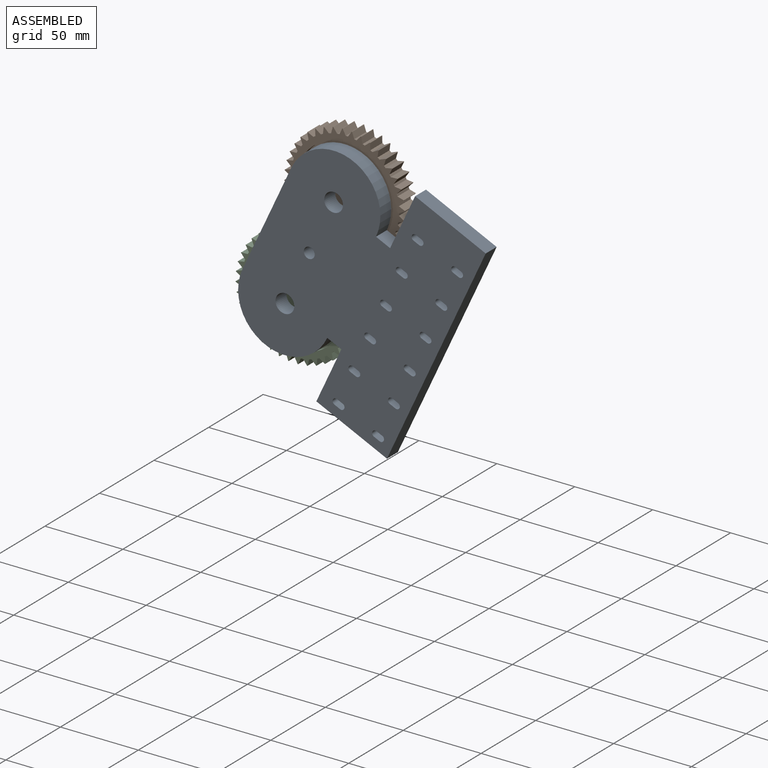
[diagram: assembled view]
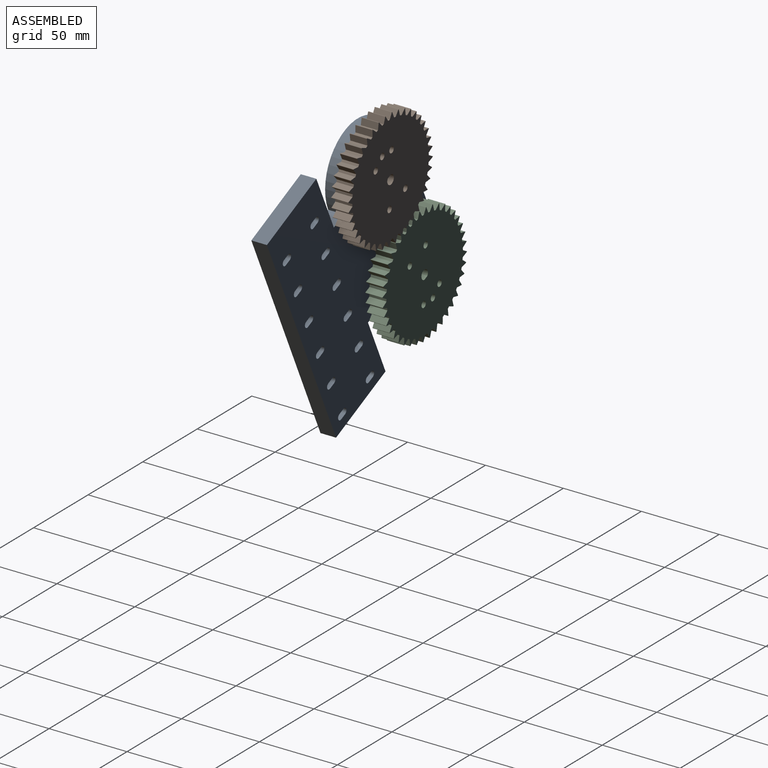
[diagram: assembled view, second angle]
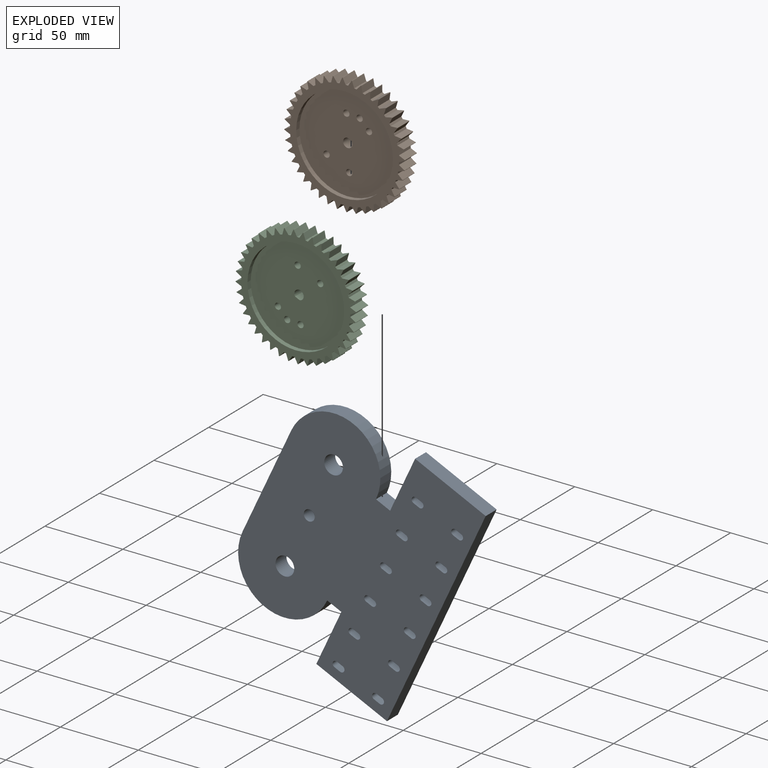
[diagram: exploded view]
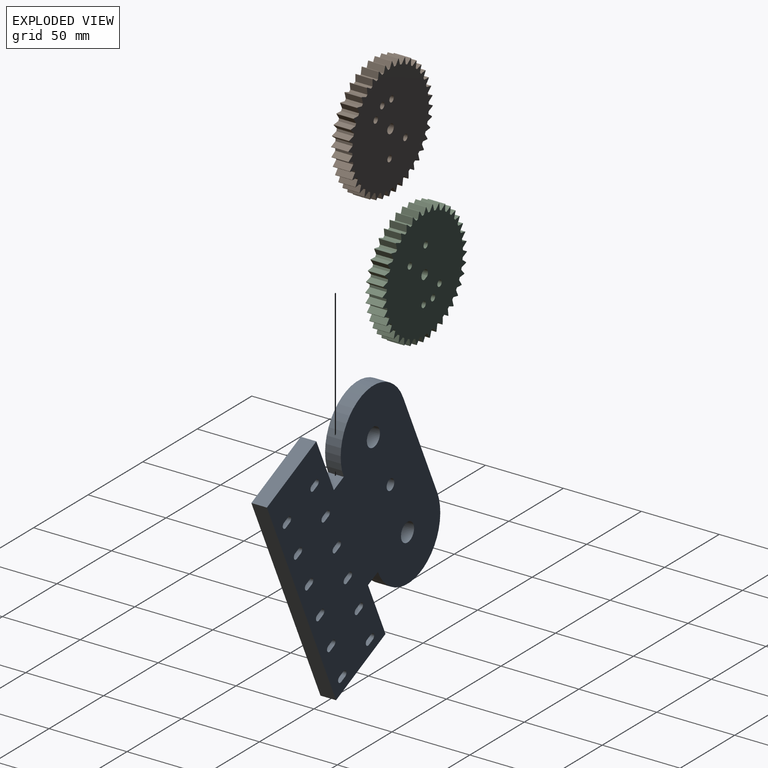
[diagram: exploded view, second angle]
ASSEMBLY  parts=3 mates=2
PART A: 63 faces, bbox 120x10x150 mm
  f0: plane 150x120mm, normal (0,1,0), area 14900mm2, adj f1,f3,f4,f5,f6,f7,f8,f9
  f1: plane 74x10mm, normal (1,0,0), area 740mm2, adj f0,f2,f6,f62
  f2: plane 150x120mm, normal (0,-1,0), area 14900mm2, adj f1,f3,f4,f5,f6,f7,f8,f9
  f3: cylinder r=6mm len=12mm, axis (0,1,0), area 377mm2, adj f0,f2
  f4: cylinder r=3.5mm len=10mm, axis (0,1,0), area 219.9mm2, adj f0,f2
  f5: cylinder r=6mm len=12mm, axis (0,1,0), area 377mm2, adj f0,f2
  f6: cylinder r=30mm len=60mm, axis (0,-1,0), area 942.5mm2, adj f0,f1,f2,f12
  f7: plane 38x10mm, normal (1,0,0), area 380mm2, adj f0,f2,f8,f61
  f8: plane 50x10mm, normal (0,0,1), area 500mm2, adj f0,f2,f7,f9
  f9: plane 150x10mm, normal (-1,0,0), area 1500mm2, adj f0,f2,f8,f10
  f10: plane 50x10mm, normal (0,0,-1), area 500mm2, adj f0,f2,f9,f11
  f11: plane 38x10mm, normal (1,0,0), area 380mm2, adj f0,f2,f10,f12
  f12: plane 10x10mm, normal (0,0,-1), area 100mm2, adj f0,f2,f6,f11
  f13: plane 10x4mm, normal (0,0,-1), area 40mm2, adj f0,f2,f14,f49
  f14: cylinder r=2mm len=10mm, axis (0,1,0), area 62.8mm2, adj f0,f2,f13,f15
  f15: plane 10x4mm, normal (0,0,1), area 40mm2, adj f0,f2,f14,f49
  f16: plane 10x4mm, normal (0,0,-1), area 40mm2, adj f0,f2,f17,f50
  f17: cylinder r=2mm len=10mm, axis (0,1,0), area 62.8mm2, adj f0,f2,f16,f18
  f18: plane 10x4mm, normal (0,0,1), area 40mm2, adj f0,f2,f17,f50
  f19: plane 10x4mm, normal (0,0,-1), area 40mm2, adj f0,f2,f20,f51
  f20: cylinder r=2mm len=10mm, axis (0,1,0), area 62.8mm2, adj f0,f2,f19,f21
  f21: plane 10x4mm, normal (0,0,1), area 40mm2, adj f0,f2,f20,f51
  f22: plane 10x4mm, normal (0,0,-1), area 40mm2, adj f0,f2,f23,f52
  f23: cylinder r=2mm len=10mm, axis (0,1,0), area 62.8mm2, adj f0,f2,f22,f24
  f24: plane 10x4mm, normal (0,0,1), area 40mm2, adj f0,f2,f23,f52
  f25: plane 10x4mm, normal (0,0,-1), area 40mm2, adj f0,f2,f26,f53
  f26: cylinder r=2mm len=10mm, axis (0,1,0), area 62.8mm2, adj f0,f2,f25,f27
  f27: plane 10x4mm, normal (0,0,1), area 40mm2, adj f0,f2,f26,f53
  f28: plane 10x4mm, normal (0,0,-1), area 40mm2, adj f0,f2,f29,f54
  f29: cylinder r=2mm len=10mm, axis (0,1,0), area 62.8mm2, adj f0,f2,f28,f30
  f30: plane 10x4mm, normal (0,0,1), area 40mm2, adj f0,f2,f29,f54
  f31: plane 10x4mm, normal (0,0,-1), area 40mm2, adj f0,f2,f32,f55
  f32: cylinder r=2mm len=10mm, axis (0,1,0), area 62.8mm2, adj f0,f2,f31,f33
  f33: plane 10x4mm, normal (0,0,1), area 40mm2, adj f0,f2,f32,f55
  f34: plane 10x4mm, normal (0,0,-1), area 40mm2, adj f0,f2,f35,f56
  f35: cylinder r=2mm len=10mm, axis (0,1,0), area 62.8mm2, adj f0,f2,f34,f36
  f36: plane 10x4mm, normal (0,0,1), area 40mm2, adj f0,f2,f35,f56
  f37: plane 10x4mm, normal (0,0,-1), area 40mm2, adj f0,f2,f38,f57
  f38: cylinder r=2mm len=10mm, axis (0,1,0), area 62.8mm2, adj f0,f2,f37,f39
  f39: plane 10x4mm, normal (0,0,1), area 40mm2, adj f0,f2,f38,f57
  f40: plane 10x4mm, normal (0,0,-1), area 40mm2, adj f0,f2,f41,f58
  f41: cylinder r=2mm len=10mm, axis (0,1,0), area 62.8mm2, adj f0,f2,f40,f42
  f42: plane 10x4mm, normal (0,0,1), area 40mm2, adj f0,f2,f41,f58
  f43: plane 10x4mm, normal (0,0,-1), area 40mm2, adj f0,f2,f44,f59
  f44: cylinder r=2mm len=10mm, axis (0,1,0), area 62.8mm2, adj f0,f2,f43,f45
  f45: plane 10x4mm, normal (0,0,1), area 40mm2, adj f0,f2,f44,f59
  f46: plane 10x4mm, normal (0,0,-1), area 40mm2, adj f0,f2,f47,f60
  f47: cylinder r=2mm len=10mm, axis (0,1,0), area 62.8mm2, adj f0,f2,f46,f48
  f48: plane 10x4mm, normal (0,0,1), area 40mm2, adj f0,f2,f47,f60
  f49: cylinder r=2mm len=10mm, axis (0,1,0), area 62.8mm2, adj f0,f2,f13,f15
  f50: cylinder r=2mm len=10mm, axis (0,1,0), area 62.8mm2, adj f0,f2,f16,f18
  f51: cylinder r=2mm len=10mm, axis (0,1,0), area 62.8mm2, adj f0,f2,f19,f21
  f52: cylinder r=2mm len=10mm, axis (0,1,0), area 62.8mm2, adj f0,f2,f22,f24
  f53: cylinder r=2mm len=10mm, axis (0,1,0), area 62.8mm2, adj f0,f2,f25,f27
  f54: cylinder r=2mm len=10mm, axis (0,1,0), area 62.8mm2, adj f0,f2,f28,f30
  f55: cylinder r=2mm len=10mm, axis (0,1,0), area 62.8mm2, adj f0,f2,f31,f33
  f56: cylinder r=2mm len=10mm, axis (0,1,0), area 62.8mm2, adj f0,f2,f34,f36
  f57: cylinder r=2mm len=10mm, axis (0,1,0), area 62.8mm2, adj f0,f2,f37,f39
  f58: cylinder r=2mm len=10mm, axis (0,1,0), area 62.8mm2, adj f0,f2,f40,f42
  f59: cylinder r=2mm len=10mm, axis (0,1,0), area 62.8mm2, adj f0,f2,f43,f45
  f60: cylinder r=2mm len=10mm, axis (0,1,0), area 62.8mm2, adj f0,f2,f46,f48
  f61: plane 10x10mm, normal (0,0,1), area 100mm2, adj f0,f2,f7,f62
  f62: cylinder r=30mm len=60mm, axis (0,-1,0), area 942.5mm2, adj f0,f1,f2,f61
PART B: 171 faces, bbox 11x77.5x77.5 mm
  f0: cylinder r=35mm len=11mm, axis (-1,0,0), area 16.5mm2, adj f41,f42,f167,f168
  f1: cylinder r=35mm len=11mm, axis (-1,0,0), area 16.5mm2, adj f41,f42,f164,f165
  f2: cylinder r=35mm len=11mm, axis (-1,0,0), area 16.5mm2, adj f41,f42,f161,f162
  f3: cylinder r=35mm len=11mm, axis (-1,0,0), area 16.5mm2, adj f41,f42,f158,f159
  f4: cylinder r=35mm len=11mm, axis (-1,0,0), area 16.5mm2, adj f41,f42,f155,f156
  f5: cylinder r=35mm len=11mm, axis (-1,0,0), area 16.5mm2, adj f41,f42,f152,f153
  f6: cylinder r=35mm len=11mm, axis (-1,0,0), area 16.5mm2, adj f41,f42,f149,f150
  f7: cylinder r=35mm len=11mm, axis (-1,0,0), area 16.5mm2, adj f41,f42,f146,f147
  f8: cylinder r=35mm len=11mm, axis (-1,0,0), area 16.5mm2, adj f41,f42,f143,f144
  f9: cylinder r=35mm len=11mm, axis (-1,0,0), area 16.5mm2, adj f41,f42,f140,f141
  f10: cylinder r=35mm len=11mm, axis (-1,0,0), area 16.5mm2, adj f41,f42,f137,f138
  f11: cylinder r=35mm len=11mm, axis (-1,0,0), area 16.5mm2, adj f41,f42,f134,f135
  f12: cylinder r=35mm len=11mm, axis (-1,0,0), area 16.5mm2, adj f41,f42,f131,f132
  f13: cylinder r=35mm len=11mm, axis (-1,0,0), area 16.5mm2, adj f41,f42,f128,f129
  f14: cylinder r=35mm len=11mm, axis (-1,0,0), area 16.5mm2, adj f41,f42,f125,f126
  f15: cylinder r=35mm len=11mm, axis (-1,0,0), area 16.5mm2, adj f41,f42,f122,f123
  f16: cylinder r=35mm len=11mm, axis (-1,0,0), area 16.5mm2, adj f41,f42,f119,f120
  f17: cylinder r=35mm len=11mm, axis (-1,0,0), area 16.5mm2, adj f41,f42,f116,f117
  f18: cylinder r=35mm len=11mm, axis (-1,0,0), area 16.5mm2, adj f41,f42,f113,f114
  f19: cylinder r=35mm len=11mm, axis (-1,0,0), area 16.5mm2, adj f41,f42,f110,f111
  f20: cylinder r=35mm len=11mm, axis (-1,0,0), area 16.5mm2, adj f41,f42,f107,f108
  f21: cylinder r=35mm len=11mm, axis (-1,0,0), area 16.5mm2, adj f41,f42,f104,f105
  f22: cylinder r=35mm len=11mm, axis (-1,0,0), area 16.5mm2, adj f41,f42,f101,f102
  f23: cylinder r=35mm len=11mm, axis (-1,0,0), area 16.5mm2, adj f41,f42,f98,f99
  f24: cylinder r=35mm len=11mm, axis (-1,0,0), area 16.5mm2, adj f41,f42,f95,f96
  f25: cylinder r=35mm len=11mm, axis (-1,0,0), area 16.5mm2, adj f41,f42,f92,f93
  f26: cylinder r=35mm len=11mm, axis (-1,0,0), area 16.5mm2, adj f41,f42,f89,f90
  f27: cylinder r=35mm len=11mm, axis (-1,0,0), area 16.5mm2, adj f41,f42,f86,f87
  f28: cylinder r=35mm len=11mm, axis (-1,0,0), area 16.5mm2, adj f41,f42,f83,f84
  f29: cylinder r=35mm len=11mm, axis (-1,0,0), area 16.5mm2, adj f41,f42,f80,f81
  f30: cylinder r=35mm len=11mm, axis (-1,0,0), area 16.5mm2, adj f41,f42,f77,f78
  f31: cylinder r=35mm len=11mm, axis (-1,0,0), area 16.5mm2, adj f41,f42,f74,f75
  f32: cylinder r=35mm len=11mm, axis (-1,0,0), area 16.5mm2, adj f41,f42,f71,f72
  f33: cylinder r=35mm len=11mm, axis (-1,0,0), area 16.5mm2, adj f41,f42,f68,f69
  f34: cylinder r=35mm len=11mm, axis (-1,0,0), area 16.5mm2, adj f41,f42,f65,f66
  f35: cylinder r=35mm len=11mm, axis (-1,0,0), area 16.5mm2, adj f41,f42,f62,f63
  f36: cylinder r=35mm len=11mm, axis (-1,0,0), area 16.5mm2, adj f41,f42,f59,f60
  f37: cylinder r=35mm len=11mm, axis (-1,0,0), area 16.5mm2, adj f41,f42,f56,f57
  f38: cylinder r=35mm len=11mm, axis (-1,0,0), area 16.5mm2, adj f41,f42,f53,f54
  f39: cylinder r=35mm len=11mm, axis (-1,0,0), area 16.5mm2, adj f41,f42,f51,f170
  f40: cylinder r=31mm len=62mm, axis (-1,0,0), area 584.3mm2, adj f41,f50
  f41: plane 77.5x77.5mm, normal (1,0,0), area 1146.4mm2, adj f0,f1,f2,f3,f4,f5,f6,f7
  f42: plane 77.5x77.5mm, normal (-1,0,0), area 4075.4mm2, adj f0,f1,f2,f3,f4,f5,f6,f7
  f43: cylinder r=3mm len=8mm, axis (-1,0,0), area 123.6mm2, adj f42,f49,f50
  f44: cylinder r=2mm len=8mm, axis (-1,0,0), area 100.5mm2, adj f42,f50
  f45: cylinder r=2mm len=8mm, axis (-1,0,0), area 100.5mm2, adj f42,f50
  f46: cylinder r=2mm len=8mm, axis (-1,0,0), area 100.5mm2, adj f42,f50
  f47: cylinder r=2mm len=8mm, axis (-1,0,0), area 100.5mm2, adj f42,f50
  f48: cylinder r=2mm len=8mm, axis (-1,0,0), area 100.5mm2, adj f42,f50
  f49: plane 8x3.22mm, normal (0,0,-1), area 25.8mm2, adj f42,f43,f50
  f50: plane 62x62mm, normal (1,0,0), area 2929mm2, adj f40,f43,f44,f45,f46,f47,f48,f49
  f51: plane 11x3.69mm, normal (0,0.9,0.44), area 45.3mm2, adj f39,f41,f42,f52
  f52: cylinder r=0.2mm len=11mm, axis (-1,0,0), area 4.9mm2, adj f41,f42,f51,f53
  f53: plane 11x3.69mm, normal (0,-0.9,0.44), area 45.3mm2, adj f38,f41,f42,f52
  f54: plane 11x3.36mm, normal (0,0.82,0.58), area 45.3mm2, adj f38,f41,f42,f55
  f55: cylinder r=0.2mm len=11mm, axis (-1,0,0), area 4.9mm2, adj f41,f42,f54,f56
  f56: plane 11x3.93mm, normal (0,-0.96,0.3), area 45.3mm2, adj f37,f41,f42,f55
  f57: plane 11x2.95mm, normal (0,0.72,0.7), area 45.3mm2, adj f37,f41,f42,f58
  f58: cylinder r=0.2mm len=11mm, axis (-1,0,0), area 4.9mm2, adj f41,f42,f57,f59
  f59: plane 11x4.08mm, normal (0,-0.99,0.14), area 45.3mm2, adj f36,f41,f42,f58
  f60: plane 11x3.3mm, normal (0,0.6,0.8), area 45.3mm2, adj f36,f41,f42,f61
  f61: cylinder r=0.2mm len=11mm, axis (-1,0,0), area 4.9mm2, adj f41,f42,f60,f62
  f62: plane 11x4.12mm, normal (0,-1,-0.01), area 45.3mm2, adj f35,f41,f42,f61
  f63: plane 11x3.64mm, normal (0,0.47,0.88), area 45.3mm2, adj f35,f41,f42,f64
  f64: cylinder r=0.2mm len=11mm, axis (-1,0,0), area 4.9mm2, adj f41,f42,f63,f65
  f65: plane 11x4.06mm, normal (0,-0.99,-0.17), area 45.3mm2, adj f34,f41,f42,f64
  f66: plane 11x3.9mm, normal (0,0.32,0.95), area 45.3mm2, adj f34,f41,f42,f67
  f67: cylinder r=0.2mm len=11mm, axis (-1,0,0), area 4.9mm2, adj f41,f42,f66,f68
  f68: plane 11x3.9mm, normal (0,-0.95,-0.32), area 45.3mm2, adj f33,f41,f42,f67
  f69: plane 11x4.06mm, normal (0,0.17,0.99), area 45.3mm2, adj f33,f41,f42,f70
  f70: cylinder r=0.2mm len=11mm, axis (-1,0,0), area 4.9mm2, adj f41,f42,f69,f71
  f71: plane 11x3.64mm, normal (0,-0.88,-0.47), area 45.3mm2, adj f32,f41,f42,f70
  f72: plane 11x4.12mm, normal (0,0.01,1), area 45.3mm2, adj f32,f41,f42,f73
  f73: cylinder r=0.2mm len=11mm, axis (-1,0,0), area 4.9mm2, adj f41,f42,f72,f74
  f74: plane 11x3.3mm, normal (0,-0.8,-0.6), area 45.3mm2, adj f31,f41,f42,f73
  f75: plane 11x4.08mm, normal (0,-0.14,0.99), area 45.3mm2, adj f31,f41,f42,f76
  f76: cylinder r=0.2mm len=11mm, axis (-1,0,0), area 4.9mm2, adj f41,f42,f75,f77
  f77: plane 11x2.95mm, normal (0,-0.7,-0.72), area 45.3mm2, adj f30,f41,f42,f76
  f78: plane 11x3.93mm, normal (0,-0.3,0.96), area 45.3mm2, adj f30,f41,f42,f79
  f79: cylinder r=0.2mm len=11mm, axis (-1,0,0), area 4.9mm2, adj f41,f42,f78,f80
  f80: plane 11x3.36mm, normal (0,-0.58,-0.82), area 45.3mm2, adj f29,f41,f42,f79
  f81: plane 11x3.69mm, normal (0,-0.44,0.9), area 45.3mm2, adj f29,f41,f42,f82
  f82: cylinder r=0.2mm len=11mm, axis (-1,0,0), area 4.9mm2, adj f41,f42,f81,f83
  f83: plane 11x3.69mm, normal (0,-0.44,-0.9), area 45.3mm2, adj f28,f41,f42,f82
  f84: plane 11x3.36mm, normal (0,-0.58,0.82), area 45.3mm2, adj f28,f41,f42,f85
  f85: cylinder r=0.2mm len=11mm, axis (-1,0,0), area 4.9mm2, adj f41,f42,f84,f86
  f86: plane 11x3.93mm, normal (0,-0.3,-0.96), area 45.3mm2, adj f27,f41,f42,f85
  f87: plane 11x2.95mm, normal (0,-0.7,0.72), area 45.3mm2, adj f27,f41,f42,f88
  f88: cylinder r=0.2mm len=11mm, axis (-1,0,0), area 4.9mm2, adj f41,f42,f87,f89
  f89: plane 11x4.08mm, normal (0,-0.14,-0.99), area 45.3mm2, adj f26,f41,f42,f88
  f90: plane 11x3.3mm, normal (0,-0.8,0.6), area 45.3mm2, adj f26,f41,f42,f91
  f91: cylinder r=0.2mm len=11mm, axis (-1,0,0), area 4.9mm2, adj f41,f42,f90,f92
  f92: plane 11x4.12mm, normal (0,0.01,-1), area 45.3mm2, adj f25,f41,f42,f91
  f93: plane 11x3.64mm, normal (0,-0.88,0.47), area 45.3mm2, adj f25,f41,f42,f94
  f94: cylinder r=0.2mm len=11mm, axis (-1,0,0), area 4.9mm2, adj f41,f42,f93,f95
  f95: plane 11x4.06mm, normal (0,0.17,-0.99), area 45.3mm2, adj f24,f41,f42,f94
  f96: plane 11x3.9mm, normal (0,-0.95,0.32), area 45.3mm2, adj f24,f41,f42,f97
  f97: cylinder r=0.2mm len=11mm, axis (-1,0,0), area 4.9mm2, adj f41,f42,f96,f98
  f98: plane 11x3.9mm, normal (0,0.32,-0.95), area 45.3mm2, adj f23,f41,f42,f97
  f99: plane 11x4.06mm, normal (0,-0.99,0.17), area 45.3mm2, adj f23,f41,f42,f100
  f100: cylinder r=0.2mm len=11mm, axis (-1,0,0), area 4.9mm2, adj f41,f42,f99,f101
  f101: plane 11x3.64mm, normal (0,0.47,-0.88), area 45.3mm2, adj f22,f41,f42,f100
  f102: plane 11x4.12mm, normal (0,-1,0.01), area 45.3mm2, adj f22,f41,f42,f103
  f103: cylinder r=0.2mm len=11mm, axis (-1,0,0), area 4.9mm2, adj f41,f42,f102,f104
  f104: plane 11x3.3mm, normal (0,0.6,-0.8), area 45.3mm2, adj f21,f41,f42,f103
  f105: plane 11x4.08mm, normal (0,-0.99,-0.14), area 45.3mm2, adj f21,f41,f42,f106
  f106: cylinder r=0.2mm len=11mm, axis (-1,0,0), area 4.9mm2, adj f41,f42,f105,f107
  f107: plane 11x2.95mm, normal (0,0.72,-0.7), area 45.3mm2, adj f20,f41,f42,f106
  f108: plane 11x3.93mm, normal (0,-0.96,-0.3), area 45.3mm2, adj f20,f41,f42,f109
  f109: cylinder r=0.2mm len=11mm, axis (-1,0,0), area 4.9mm2, adj f41,f42,f108,f110
  f110: plane 11x3.36mm, normal (0,0.82,-0.58), area 45.3mm2, adj f19,f41,f42,f109
  f111: plane 11x3.69mm, normal (0,-0.9,-0.44), area 45.3mm2, adj f19,f41,f42,f112
  f112: cylinder r=0.2mm len=11mm, axis (-1,0,0), area 4.9mm2, adj f41,f42,f111,f113
  f113: plane 11x3.69mm, normal (0,0.9,-0.44), area 45.3mm2, adj f18,f41,f42,f112
  f114: plane 11x3.36mm, normal (0,-0.82,-0.58), area 45.3mm2, adj f18,f41,f42,f115
  f115: cylinder r=0.2mm len=11mm, axis (-1,0,0), area 4.9mm2, adj f41,f42,f114,f116
  f116: plane 11x3.93mm, normal (0,0.96,-0.3), area 45.3mm2, adj f17,f41,f42,f115
  f117: plane 11x2.95mm, normal (0,-0.72,-0.7), area 45.3mm2, adj f17,f41,f42,f118
  f118: cylinder r=0.2mm len=11mm, axis (-1,0,0), area 4.9mm2, adj f41,f42,f117,f119
  f119: plane 11x4.08mm, normal (0,0.99,-0.14), area 45.3mm2, adj f16,f41,f42,f118
  f120: plane 11x3.3mm, normal (0,-0.6,-0.8), area 45.3mm2, adj f16,f41,f42,f121
  f121: cylinder r=0.2mm len=11mm, axis (-1,0,0), area 4.9mm2, adj f41,f42,f120,f122
  f122: plane 11x4.12mm, normal (0,1,0.01), area 45.3mm2, adj f15,f41,f42,f121
  f123: plane 11x3.64mm, normal (0,-0.47,-0.88), area 45.3mm2, adj f15,f41,f42,f124
  f124: cylinder r=0.2mm len=11mm, axis (-1,0,0), area 4.9mm2, adj f41,f42,f123,f125
  f125: plane 11x4.06mm, normal (0,0.99,0.17), area 45.3mm2, adj f14,f41,f42,f124
  f126: plane 11x3.9mm, normal (0,-0.32,-0.95), area 45.3mm2, adj f14,f41,f42,f127
  f127: cylinder r=0.2mm len=11mm, axis (-1,0,0), area 4.9mm2, adj f41,f42,f126,f128
  f128: plane 11x3.9mm, normal (0,0.95,0.32), area 45.3mm2, adj f13,f41,f42,f127
  f129: plane 11x4.06mm, normal (0,-0.17,-0.99), area 45.3mm2, adj f13,f41,f42,f130
  f130: cylinder r=0.2mm len=11mm, axis (-1,0,0), area 4.9mm2, adj f41,f42,f129,f131
  f131: plane 11x3.64mm, normal (0,0.88,0.47), area 45.3mm2, adj f12,f41,f42,f130
  f132: plane 11x4.12mm, normal (0,-0.01,-1), area 45.3mm2, adj f12,f41,f42,f133
  f133: cylinder r=0.2mm len=11mm, axis (-1,0,0), area 4.9mm2, adj f41,f42,f132,f134
  f134: plane 11x3.3mm, normal (0,0.8,0.6), area 45.3mm2, adj f11,f41,f42,f133
  f135: plane 11x4.08mm, normal (0,0.14,-0.99), area 45.3mm2, adj f11,f41,f42,f136
  f136: cylinder r=0.2mm len=11mm, axis (-1,0,0), area 4.9mm2, adj f41,f42,f135,f137
  f137: plane 11x2.95mm, normal (0,0.7,0.72), area 45.3mm2, adj f10,f41,f42,f136
  f138: plane 11x3.93mm, normal (0,0.3,-0.96), area 45.3mm2, adj f10,f41,f42,f139
  f139: cylinder r=0.2mm len=11mm, axis (-1,0,0), area 4.9mm2, adj f41,f42,f138,f140
  f140: plane 11x3.36mm, normal (0,0.58,0.82), area 45.3mm2, adj f9,f41,f42,f139
  f141: plane 11x3.69mm, normal (0,0.44,-0.9), area 45.3mm2, adj f9,f41,f42,f142
  f142: cylinder r=0.2mm len=11mm, axis (-1,0,0), area 4.9mm2, adj f41,f42,f141,f143
  f143: plane 11x3.69mm, normal (0,0.44,0.9), area 45.3mm2, adj f8,f41,f42,f142
  f144: plane 11x3.36mm, normal (0,0.58,-0.82), area 45.3mm2, adj f8,f41,f42,f145
  f145: cylinder r=0.2mm len=11mm, axis (-1,0,0), area 4.9mm2, adj f41,f42,f144,f146
  f146: plane 11x3.93mm, normal (0,0.3,0.96), area 45.3mm2, adj f7,f41,f42,f145
  f147: plane 11x2.95mm, normal (0,0.7,-0.72), area 45.3mm2, adj f7,f41,f42,f148
  f148: cylinder r=0.2mm len=11mm, axis (-1,0,0), area 4.9mm2, adj f41,f42,f147,f149
  f149: plane 11x4.08mm, normal (0,0.14,0.99), area 45.3mm2, adj f6,f41,f42,f148
  f150: plane 11x3.3mm, normal (0,0.8,-0.6), area 45.3mm2, adj f6,f41,f42,f151
  f151: cylinder r=0.2mm len=11mm, axis (-1,0,0), area 4.9mm2, adj f41,f42,f150,f152
  f152: plane 11x4.12mm, normal (0,-0.01,1), area 45.3mm2, adj f5,f41,f42,f151
  f153: plane 11x3.64mm, normal (0,0.88,-0.47), area 45.3mm2, adj f5,f41,f42,f154
  f154: cylinder r=0.2mm len=11mm, axis (-1,0,0), area 4.9mm2, adj f41,f42,f153,f155
  f155: plane 11x4.06mm, normal (0,-0.17,0.99), area 45.3mm2, adj f4,f41,f42,f154
  f156: plane 11x3.9mm, normal (0,0.95,-0.32), area 45.3mm2, adj f4,f41,f42,f157
  f157: cylinder r=0.2mm len=11mm, axis (-1,0,0), area 4.9mm2, adj f41,f42,f156,f158
  f158: plane 11x3.9mm, normal (0,-0.32,0.95), area 45.3mm2, adj f3,f41,f42,f157
  f159: plane 11x4.06mm, normal (0,0.99,-0.17), area 45.3mm2, adj f3,f41,f42,f160
  f160: cylinder r=0.2mm len=11mm, axis (-1,0,0), area 4.9mm2, adj f41,f42,f159,f161
  f161: plane 11x3.64mm, normal (0,-0.47,0.88), area 45.3mm2, adj f2,f41,f42,f160
  f162: plane 11x4.12mm, normal (0,1,-0.01), area 45.3mm2, adj f2,f41,f42,f163
  f163: cylinder r=0.2mm len=11mm, axis (-1,0,0), area 4.9mm2, adj f41,f42,f162,f164
  f164: plane 11x3.3mm, normal (0,-0.6,0.8), area 45.3mm2, adj f1,f41,f42,f163
  f165: plane 11x4.08mm, normal (0,0.99,0.14), area 45.3mm2, adj f1,f41,f42,f166
  f166: cylinder r=0.2mm len=11mm, axis (-1,0,0), area 4.9mm2, adj f41,f42,f165,f167
  f167: plane 11x2.95mm, normal (0,-0.72,0.7), area 45.3mm2, adj f0,f41,f42,f166
  f168: plane 11x3.93mm, normal (0,0.96,0.3), area 45.3mm2, adj f0,f41,f42,f169
  f169: cylinder r=0.2mm len=11mm, axis (-1,0,0), area 4.9mm2, adj f41,f42,f168,f170
  f170: plane 11x3.36mm, normal (0,-0.82,0.58), area 45.3mm2, adj f39,f41,f42,f169
PART C: same geometry as B
PLACE A rot(axis=(0,-1,0),155deg) t=(58.68,7.91,-142.16)mm
PLACE B rot(axis=(-0.21,0.21,-0.95),92.7deg) t=(-2.76,18.91,-46.42)mm
PLACE C rot(axis=(0.7,-0.7,-0.15),162.4deg) t=(-14.95,18.91,-91.49)mm
MATE revolute A.f3 <-> C.f0  axis (0,1,0) through (-24.49,7.91,-102.49)mm
MATE revolute A.f5 <-> B.f0  axis (0,1,0) through (6.78,7.91,-35.42)mm
